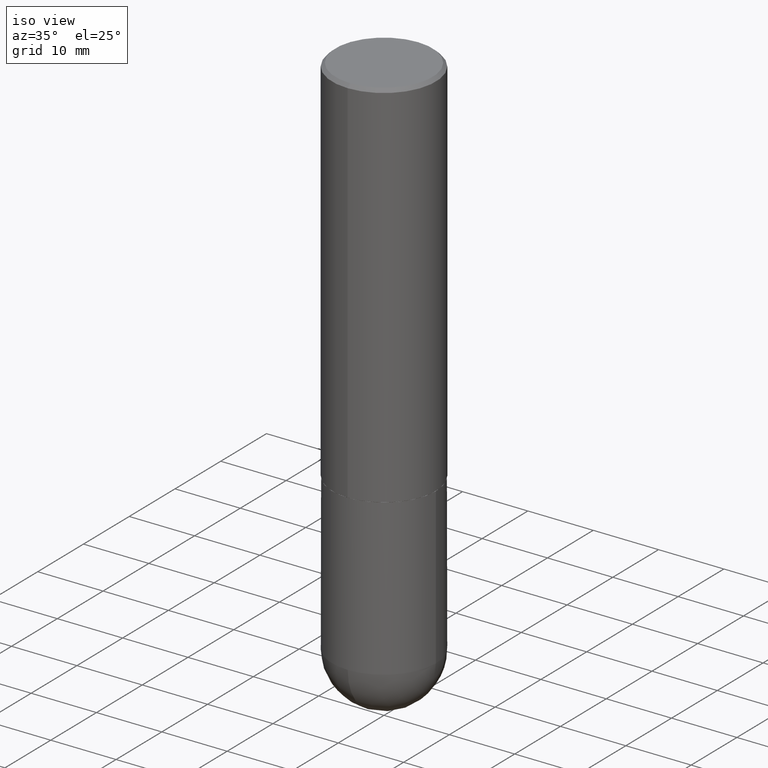
[diagram: clean part render]
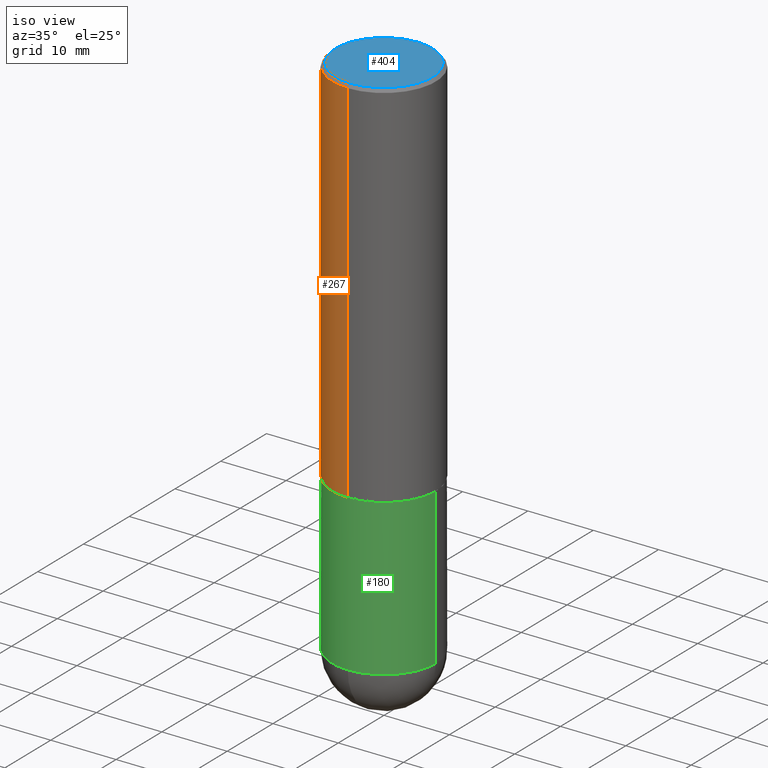
[diagram: same view with three faces highlighted in distinct colors, each labeled with its STEP entity id]
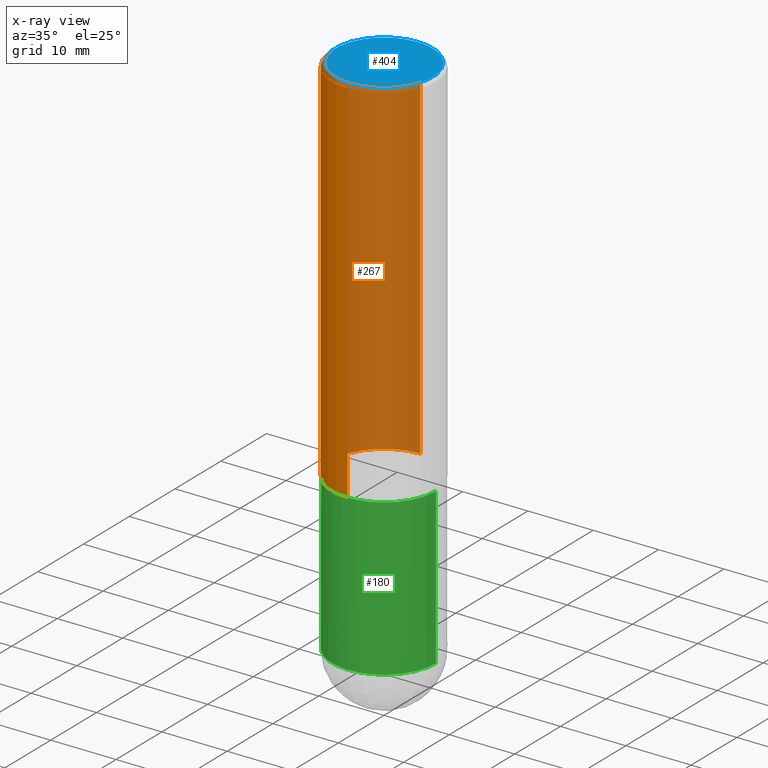
[diagram: x-ray of the same camera — body ghosted, the three highlighted faces saturated]
A machine part, iso view with three faces highlighted in distinct colors.
The next image is the same camera in x-ray (body ghosted, the three faces saturated) — at least one of them is partly hidden behind the body in this view.
Their STEP definitions:

[orange] entity #267 — the highlighted cylindrical surface (partial cylindrical patch) has radius 7.9375 mm, axis along (-0, 0, 1).
#15 = DIRECTION ( 'NONE',  ( -2.445456083490282999E-29, 3.491499558466306603E-15, 1.000000000000000000 ) ) ;
#16 = VERTEX_POINT ( 'NONE', #235 ) ;
#65 = ORIENTED_EDGE ( 'NONE', *, *, #252, .T. ) ;
#71 = VERTEX_POINT ( 'NONE', #146 ) ;
#77 = CARTESIAN_POINT ( 'NONE',  ( 2.220446049250314264E-15, 0.3125000000000002220, -1.091093612020721528E-15 ) ) ;
#80 = DIRECTION ( 'NONE',  ( -2.445456083490282999E-29, 3.491499558466306603E-15, 1.000000000000000000 ) ) ;
#84 = VECTOR ( 'NONE', #368, 39.37007874015748143 ) ;
#90 = VERTEX_POINT ( 'NONE', #91 ) ;
#91 = CARTESIAN_POINT ( 'NONE',  ( 2.220446049250342269E-15, 0.3124999999999924505, -2.249000000000000998 ) ) ;
#98 = VECTOR ( 'NONE', #80, 39.37007874015748143 ) ;
#107 = CARTESIAN_POINT ( 'NONE',  ( 0.000000000000000000, 0.000000000000000000, 0.000000000000000000 ) ) ;
#110 = EDGE_CURVE ( 'NONE', #16, #71, #382, .T. ) ;
#128 = CIRCLE ( 'NONE', #308, 0.3125000000000002776 ) ;
#141 = LINE ( 'NONE', #77, #98 ) ;
#146 = CARTESIAN_POINT ( 'NONE',  ( -2.143905624303604008E-15, -0.3125000000000002220, -0.01999999999999898040 ) ) ;
#156 = EDGE_CURVE ( 'NONE', #349, #71, #234, .T. ) ;
#164 = ORIENTED_EDGE ( 'NONE', *, *, #110, .F. ) ;
#174 = AXIS2_PLACEMENT_3D ( 'NONE', #107, #357, #331 ) ;
#191 = ORIENTED_EDGE ( 'NONE', *, *, #156, .T. ) ;
#203 = CARTESIAN_POINT ( 'NONE',  ( 5.499830731769645034E-29, -7.852382506990722396E-15, -2.248999999999999666 ) ) ;
#204 = EDGE_LOOP ( 'NONE', ( #222, #65, #191, #164 ) ) ;
#206 = DIRECTION ( 'NONE',  ( -6.982962677686265133E-15, -1.000000000000000000, 3.496765431890254947E-15 ) ) ;
#216 = EDGE_CURVE ( 'NONE', #90, #16, #141, .T. ) ;
#222 = ORIENTED_EDGE ( 'NONE', *, *, #216, .F. ) ;
#224 = CARTESIAN_POINT ( 'NONE',  ( -2.182175836776905099E-15, -0.3125000000000081601, -2.248999999999998778 ) ) ;
#232 = CARTESIAN_POINT ( 'NONE',  ( -2.182175836776959530E-15, -0.3125000000000002220, 1.091093612020721528E-15 ) ) ;
#234 = LINE ( 'NONE', #232, #84 ) ;
#235 = CARTESIAN_POINT ( 'NONE',  ( 2.182175836776959530E-15, 0.3125000000000000555, -0.02000000000000116615 ) ) ;
#252 = EDGE_CURVE ( 'NONE', #90, #349, #128, .T. ) ;
#262 = FACE_OUTER_BOUND ( 'NONE', #204, .T. ) ;
#267 = ADVANCED_FACE ( 'NONE', ( #262 ), #395, .T. ) ;
#287 = AXIS2_PLACEMENT_3D ( 'NONE', #344, #375, #206 ) ;
#308 = AXIS2_PLACEMENT_3D ( 'NONE', #203, #15, #329 ) ;
#329 = DIRECTION ( 'NONE',  ( -6.982962677686265922E-15, -1.000000000000000000, 3.496765431890253764E-15 ) ) ;
#331 = DIRECTION ( 'NONE',  ( -6.982962677686265922E-15, -1.000000000000000000, 3.491499558466306603E-15 ) ) ;
#344 = CARTESIAN_POINT ( 'NONE',  ( 4.890912166980584074E-31, -6.982999116932638204E-17, -0.02000000000000007327 ) ) ;
#349 = VERTEX_POINT ( 'NONE', #224 ) ;
#357 = DIRECTION ( 'NONE',  ( -2.445456083490282999E-29, 3.491499558466306603E-15, 1.000000000000000000 ) ) ;
#368 = DIRECTION ( 'NONE',  ( -2.445456083490282999E-29, 3.491499558466306603E-15, 1.000000000000000000 ) ) ;
#375 = DIRECTION ( 'NONE',  ( -2.445456083490282999E-29, 3.491499558466306603E-15, 1.000000000000000000 ) ) ;
#382 = CIRCLE ( 'NONE', #287, 0.3125000000000001665 ) ;
#395 = CYLINDRICAL_SURFACE ( 'NONE', #174, 0.3125000000000002220 ) ;

[blue] entity #404 — the highlighted planar face has unit normal (0, -0, -1).
#2 = EDGE_CURVE ( 'NONE', #115, #29, #119, .T. ) ;
#29 = VERTEX_POINT ( 'NONE', #78 ) ;
#39 = ORIENTED_EDGE ( 'NONE', *, *, #2, .T. ) ;
#66 = AXIS2_PLACEMENT_3D ( 'NONE', #366, #359, #138 ) ;
#67 = ORIENTED_EDGE ( 'NONE', *, *, #175, .T. ) ;
#69 = DIRECTION ( 'NONE',  ( 6.982962677686265922E-15, 1.000000000000000000, -3.491499558466306603E-15 ) ) ;
#70 = CARTESIAN_POINT ( 'NONE',  ( 2.112346210000095838E-15, 0.2924999999999999267, -8.206382045769005542E-16 ) ) ;
#78 = CARTESIAN_POINT ( 'NONE',  ( -2.075300644325888282E-15, -0.2924999999999999267, 1.221889037125888235E-15 ) ) ;
#88 = CIRCLE ( 'NONE', #66, 0.2924999999999999267 ) ;
#104 = EDGE_LOOP ( 'NONE', ( #39, #67 ) ) ;
#115 = VERTEX_POINT ( 'NONE', #70 ) ;
#119 = CIRCLE ( 'NONE', #361, 0.2924999999999999267 ) ;
#138 = DIRECTION ( 'NONE',  ( -6.982962677686265133E-15, -1.000000000000000000, 3.491499558466306603E-15 ) ) ;
#175 = EDGE_CURVE ( 'NONE', #29, #115, #88, .T. ) ;
#179 = DIRECTION ( 'NONE',  ( -2.445456083490282999E-29, 3.491499558466306603E-15, 1.000000000000000000 ) ) ;
#220 = CARTESIAN_POINT ( 'NONE',  ( 2.042516583223232145E-15, 0.2924999999999999267, -9.209509127141472772E-16 ) ) ;
#255 = PLANE ( 'NONE',  #271 ) ;
#271 = AXIS2_PLACEMENT_3D ( 'NONE', #220, #352, #69 ) ;
#352 = DIRECTION ( 'NONE',  ( 2.445456083490282718E-29, -3.491499558466306603E-15, -1.000000000000000000 ) ) ;
#356 = FACE_OUTER_BOUND ( 'NONE', #104, .T. ) ;
#359 = DIRECTION ( 'NONE',  ( -2.445456083490282999E-29, 3.491499558466306603E-15, 1.000000000000000000 ) ) ;
#361 = AXIS2_PLACEMENT_3D ( 'NONE', #407, #179, #405 ) ;
#366 = CARTESIAN_POINT ( 'NONE',  ( -4.906206447312317313E-45, 7.004835523395145485E-31, 2.006254162744939635E-16 ) ) ;
#404 = ADVANCED_FACE ( 'NONE', ( #356 ), #255, .F. ) ;
#405 = DIRECTION ( 'NONE',  ( -6.982962677686265133E-15, -1.000000000000000000, 3.491499558466306603E-15 ) ) ;
#407 = CARTESIAN_POINT ( 'NONE',  ( -4.906206447312317313E-45, 7.004835523395145485E-31, 2.006254162744939635E-16 ) ) ;

[green] entity #180 — the highlighted cylindrical surface (partial cylindrical patch) has radius 7.9375 mm, axis along (-0, 0, 1).
#14 = DIRECTION ( 'NONE',  ( -2.445468806185136597E-29, 3.491481338843145583E-15, 1.000000000000000000 ) ) ;
#19 = DIRECTION ( 'NONE',  ( -2.445468806185136597E-29, 3.491481338843145583E-15, 1.000000000000000000 ) ) ;
#24 = DIRECTION ( 'NONE',  ( -2.445468806185136877E-29, 3.491481338843145188E-15, 1.000000000000000000 ) ) ;
#31 = ORIENTED_EDGE ( 'NONE', *, *, #254, .T. ) ;
#32 = ORIENTED_EDGE ( 'NONE', *, *, #276, .T. ) ;
#74 = CARTESIAN_POINT ( 'NONE',  ( 0.000000000000000000, 0.000000000000000000, 0.000000000000000000 ) ) ;
#79 = DIRECTION ( 'NONE',  ( -2.445468806185136877E-29, 3.491481338843145188E-15, 1.000000000000000000 ) ) ;
#105 = AXIS2_PLACEMENT_3D ( 'NONE', #74, #198, #165 ) ;
#127 = CARTESIAN_POINT ( 'NONE',  ( 5.502304813916556222E-29, -7.855833012397076871E-15, -2.249999999999999556 ) ) ;
#129 = LINE ( 'NONE', #233, #408 ) ;
#131 = VERTEX_POINT ( 'NONE', #256 ) ;
#132 = CARTESIAN_POINT ( 'NONE',  ( -0.3125000000000000000, -7.272018840729490833E-15, -3.187500000000000000 ) ) ;
#134 = CIRCLE ( 'NONE', #295, 0.3125000000000000000 ) ;
#147 = EDGE_CURVE ( 'NONE', #289, #314, #399, .T. ) ;
#165 = DIRECTION ( 'NONE',  ( 1.000000000000000000, -6.982962677686266711E-15, 4.876176775795936353E-29 ) ) ;
#167 = CARTESIAN_POINT ( 'NONE',  ( 7.794931819715121781E-29, -1.112909676756252622E-14, -3.187500000000000000 ) ) ;
#170 = CYLINDRICAL_SURFACE ( 'NONE', #105, 0.3125000000000000000 ) ;
#180 = ADVANCED_FACE ( 'NONE', ( #336 ), #170, .T. ) ;
#193 = DIRECTION ( 'NONE',  ( -2.445468806185136597E-29, 3.491481338843145583E-15, 1.000000000000000000 ) ) ;
#196 = DIRECTION ( 'NONE',  ( 1.000000000000000000, -6.982962677686269077E-15, 0.000000000000000000 ) ) ;
#197 = VECTOR ( 'NONE', #24, 39.37007874015748143 ) ;
#198 = DIRECTION ( 'NONE',  ( -2.445468806185136597E-29, 3.491481338843145583E-15, 1.000000000000000000 ) ) ;
#218 = ORIENTED_EDGE ( 'NONE', *, *, #337, .F. ) ;
#225 = DIRECTION ( 'NONE',  ( 1.000000000000000000, -6.982962677686269077E-15, 0.000000000000000000 ) ) ;
#226 = ORIENTED_EDGE ( 'NONE', *, *, #342, .T. ) ;
#229 = VERTEX_POINT ( 'NONE', #268 ) ;
#233 = CARTESIAN_POINT ( 'NONE',  ( 0.3125000000000000000, -2.182175836776958347E-15, 1.523805242436230075E-29 ) ) ;
#236 = CARTESIAN_POINT ( 'NONE',  ( -0.3125000000000000000, 2.220446049250313081E-15, -1.537167215704658232E-29 ) ) ;
#254 = EDGE_CURVE ( 'NONE', #289, #131, #362, .T. ) ;
#256 = CARTESIAN_POINT ( 'NONE',  ( -2.220446049250237350E-15, -0.3125000000000114908, -3.187499999999998668 ) ) ;
#268 = CARTESIAN_POINT ( 'NONE',  ( 0.3125000000000000000, -1.003800884917403522E-14, -2.249999999999999556 ) ) ;
#276 = EDGE_CURVE ( 'NONE', #131, #286, #350, .T. ) ;
#280 = AXIS2_PLACEMENT_3D ( 'NONE', #297, #193, #196 ) ;
#286 = VERTEX_POINT ( 'NONE', #384 ) ;
#289 = VERTEX_POINT ( 'NONE', #132 ) ;
#292 = CARTESIAN_POINT ( 'NONE',  ( -0.3125000000000000000, -7.272018840729487678E-15, -2.249999999999999556 ) ) ;
#295 = AXIS2_PLACEMENT_3D ( 'NONE', #127, #14, #389 ) ;
#297 = CARTESIAN_POINT ( 'NONE',  ( 7.794931819715121781E-29, -1.112909676756252622E-14, -3.187500000000000000 ) ) ;
#314 = VERTEX_POINT ( 'NONE', #292 ) ;
#336 = FACE_OUTER_BOUND ( 'NONE', #354, .T. ) ;
#337 = EDGE_CURVE ( 'NONE', #314, #229, #134, .T. ) ;
#342 = EDGE_CURVE ( 'NONE', #286, #229, #129, .T. ) ;
#350 = CIRCLE ( 'NONE', #280, 0.3125000000000000000 ) ;
#354 = EDGE_LOOP ( 'NONE', ( #360, #31, #32, #226, #218 ) ) ;
#360 = ORIENTED_EDGE ( 'NONE', *, *, #147, .F. ) ;
#362 = CIRCLE ( 'NONE', #369, 0.3125000000000000000 ) ;
#369 = AXIS2_PLACEMENT_3D ( 'NONE', #167, #19, #225 ) ;
#384 = CARTESIAN_POINT ( 'NONE',  ( 0.3125000000000000000, -1.167464072675676384E-14, -3.187500000000000000 ) ) ;
#389 = DIRECTION ( 'NONE',  ( 1.000000000000000000, -6.982962677686269077E-15, 0.000000000000000000 ) ) ;
#399 = LINE ( 'NONE', #236, #197 ) ;
#408 = VECTOR ( 'NONE', #79, 39.37007874015748143 ) ;